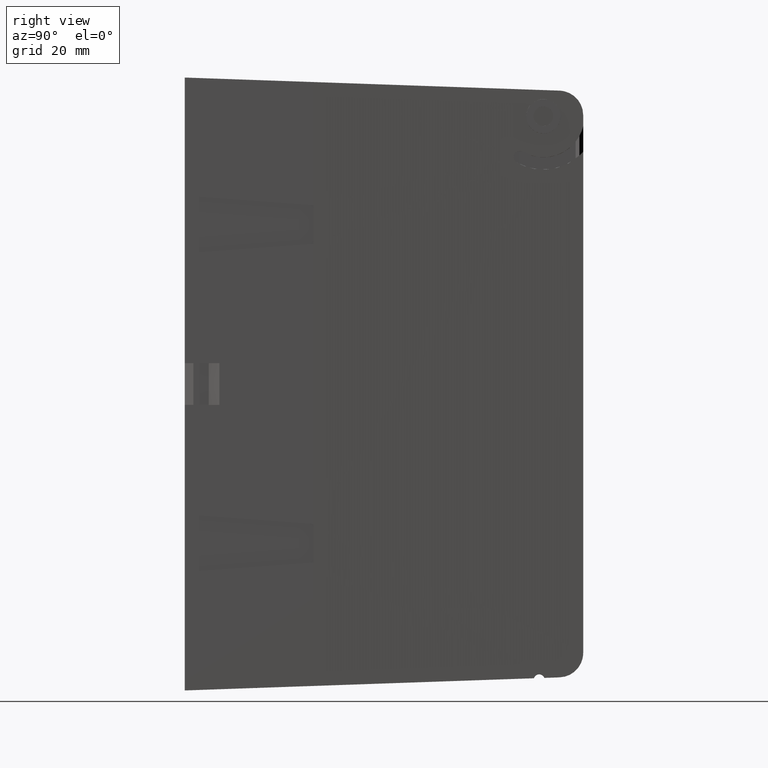
[diagram: clean part render]
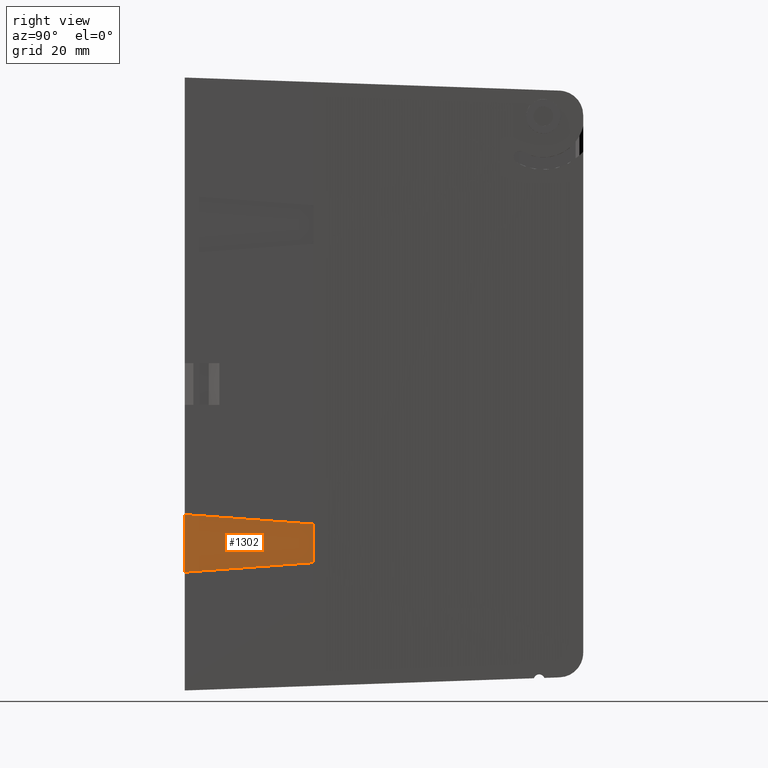
[diagram: same view with one face highlighted and labeled with its STEP entity id]
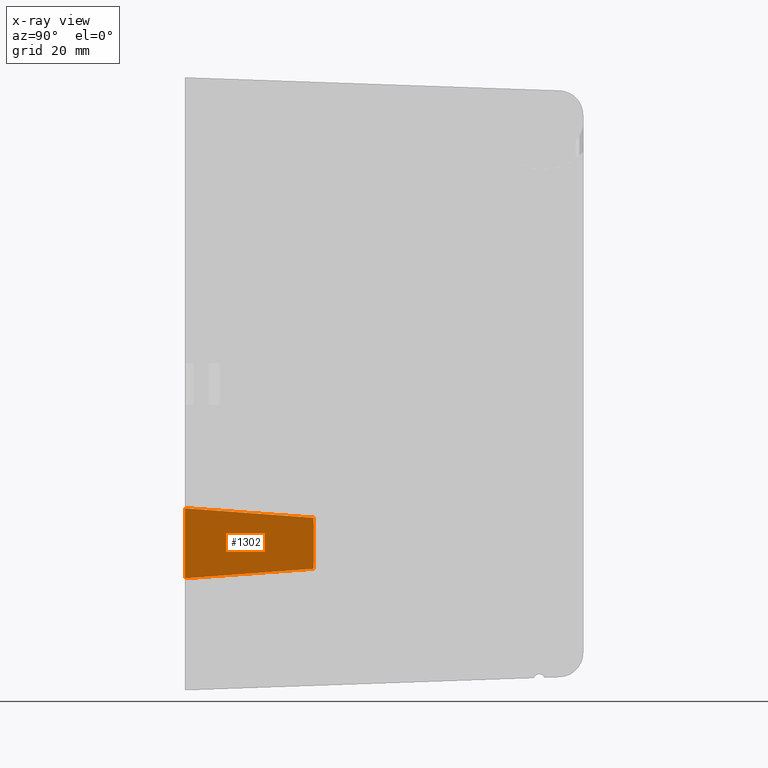
[diagram: x-ray of the same camera — body ghosted, the highlighted face saturated]
A machine part, right view. The second image highlights one B-rep face of the part: STEP entity #1302.
The next image is the same camera in x-ray: the body ghosted, the highlighted face saturated — about 0% of this face is hidden behind the body in this view.
In plain terms, the highlighted planar face has unit normal (-1, 0, -0).
Its self-contained STEP definition (entity closure, byte-faithful):
#52 = EDGE_CURVE ( 'NONE', #853, #1357, #1155, .T. ) ;
#108 = ORIENTED_EDGE ( 'NONE', *, *, #219, .T. ) ;
#109 = CARTESIAN_POINT ( 'NONE',  ( -0.006999999999999654100, 1.050000000000000000, -1.091983125374686100 ) ) ;
#219 = EDGE_CURVE ( 'NONE', #853, #847, #1346, .T. ) ;
#221 = CARTESIAN_POINT ( 'NONE',  ( -0.006999999999999602900, 2.731847993664263200E-016, -1.585838456473043900 ) ) ;
#323 = VECTOR ( 'NONE', #1152, 39.37007874015748100 ) ;
#341 = CARTESIAN_POINT ( 'NONE',  ( -0.006999999999999602900, 1.048219031189850000, -1.508148872539625700 ) ) ;
#348 = DIRECTION ( 'NONE',  ( -8.905208920383558000E-018, 0.9972646886342373400, 0.07391306246704755500 ) ) ;
#403 = EDGE_CURVE ( 'NONE', #847, #1055, #922, .T. ) ;
#432 = DIRECTION ( 'NONE',  ( 1.204822073818664600E-016, 0.0000000000000000000, -1.000000000000000000 ) ) ;
#437 = CARTESIAN_POINT ( 'NONE',  ( -0.006999999999999594200, 1.050000000000000000, -1.610000000000000100 ) ) ;
#517 = DIRECTION ( 'NONE',  ( -1.000000000000000000, 0.0000000000000000000, -1.204822073818664600E-016 ) ) ;
#525 = CARTESIAN_POINT ( 'NONE',  ( -0.006999999999999594200, 1.050000000000000000, -1.610000000000000100 ) ) ;
#529 = PLANE ( 'NONE',  #1193 ) ;
#537 = DIRECTION ( 'NONE',  ( -1.204822073818664600E-016, 0.0000000000000000000, 1.000000000000000000 ) ) ;
#618 = CARTESIAN_POINT ( 'NONE',  ( -0.006999999999999602900, 1.050000000000000000, -1.508016874625314000 ) ) ;
#622 = VECTOR ( 'NONE', #432, 39.37007874015748100 ) ;
#706 = VECTOR ( 'NONE', #348, 39.37007874015748100 ) ;
#792 = CARTESIAN_POINT ( 'NONE',  ( -0.006999999999999594200, 2.731847993664263200E-016, -1.610000000000000100 ) ) ;
#847 = VERTEX_POINT ( 'NONE', #994 ) ;
#853 = VERTEX_POINT ( 'NONE', #109 ) ;
#922 = LINE ( 'NONE', #792, #1326 ) ;
#977 = ORIENTED_EDGE ( 'NONE', *, *, #52, .F. ) ;
#981 = ORIENTED_EDGE ( 'NONE', *, *, #1198, .T. ) ;
#994 = CARTESIAN_POINT ( 'NONE',  ( -0.006999999999999670500, 2.731847993664263200E-016, -1.014161543526956400 ) ) ;
#1055 = VERTEX_POINT ( 'NONE', #221 ) ;
#1070 = ORIENTED_EDGE ( 'NONE', *, *, #403, .T. ) ;
#1149 = EDGE_LOOP ( 'NONE', ( #977, #108, #1070, #981 ) ) ;
#1152 = DIRECTION ( 'NONE',  ( -8.905208920383558000E-018, -0.9972646886342373400, 0.07391306246704751300 ) ) ;
#1155 = LINE ( 'NONE', #437, #622 ) ;
#1171 = CARTESIAN_POINT ( 'NONE',  ( -0.006999999999999662700, -0.001780968810150597600, -1.014029545612644700 ) ) ;
#1189 = FACE_OUTER_BOUND ( 'NONE', #1149, .T. ) ;
#1193 = AXIS2_PLACEMENT_3D ( 'NONE', #525, #517, #537 ) ;
#1198 = EDGE_CURVE ( 'NONE', #1055, #1357, #1285, .T. ) ;
#1285 = LINE ( 'NONE', #341, #706 ) ;
#1302 = ADVANCED_FACE ( 'NONE', ( #1189 ), #529, .F. ) ;
#1326 = VECTOR ( 'NONE', #1355, 39.37007874015748100 ) ;
#1346 = LINE ( 'NONE', #1171, #323 ) ;
#1355 = DIRECTION ( 'NONE',  ( 1.204822073818664600E-016, 0.0000000000000000000, -1.000000000000000000 ) ) ;
#1357 = VERTEX_POINT ( 'NONE', #618 ) ;